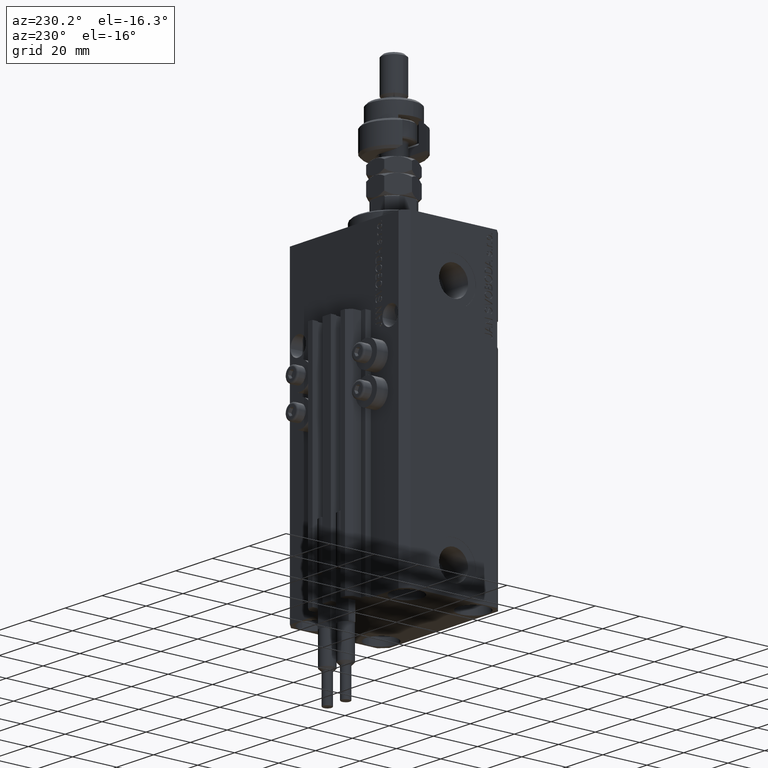
[diagram: clean part render]
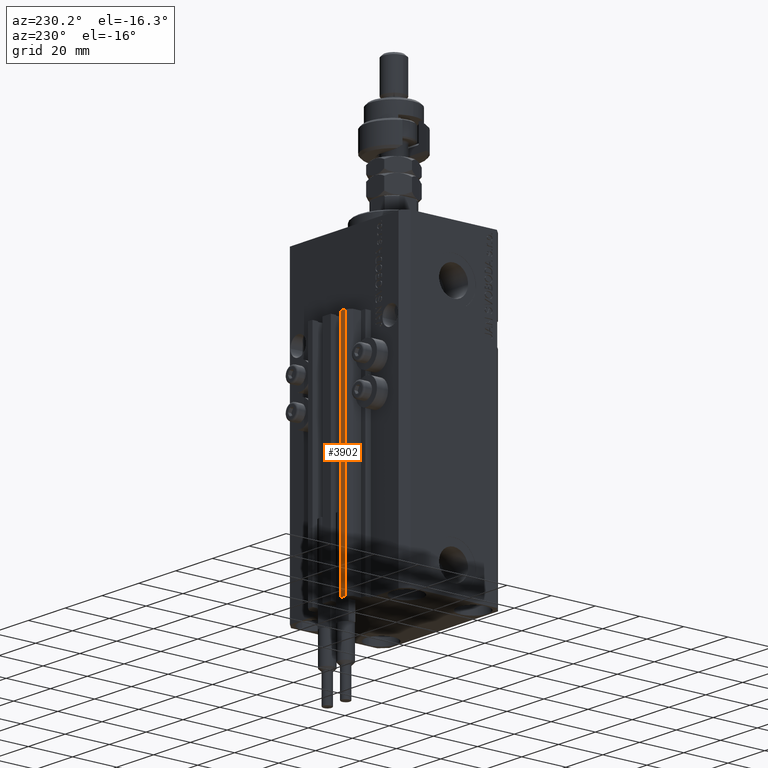
[diagram: same view with one face highlighted and labeled with its STEP entity id]
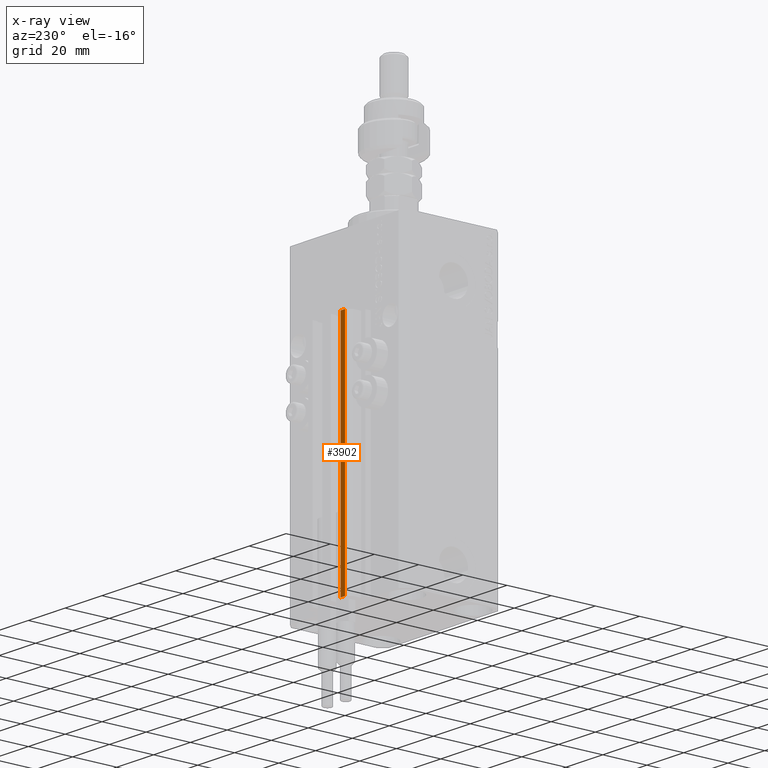
[diagram: x-ray of the same camera — body ghosted, the highlighted face saturated]
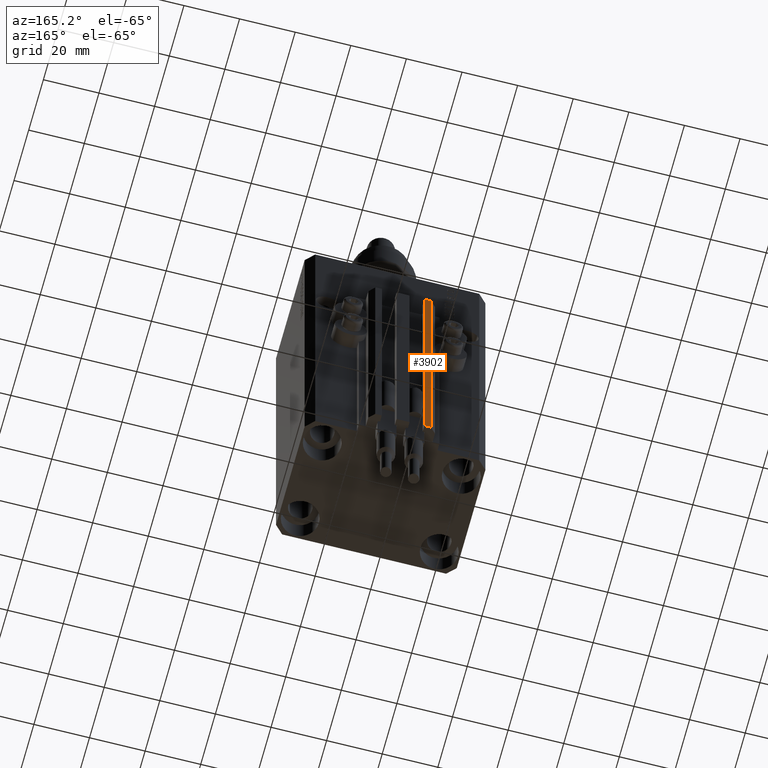
[diagram: same view with one face highlighted and labeled with its STEP entity id]
A machine part, auxiliary view. The second image highlights one B-rep face of the part: STEP entity #3902.
The next image is the same camera in x-ray: the body ghosted, the highlighted face saturated — about 0% of this face is hidden behind the body in this view.
A second angle (auxiliary view) of the same face is appended — the face is thin or edge-on in the first view.
In plain terms, the highlighted planar face has unit normal (0, 1, 0).
Its self-contained STEP definition (entity closure, byte-faithful):
#1287 = VECTOR ( 'NONE', #30490, 1000.000000000000000 ) ;
#3902 = ADVANCED_FACE ( 'NONE', ( #43196 ), #35518, .T. ) ;
#5697 = CARTESIAN_POINT ( 'NONE',  ( -10.00000000000000000, 30.49999999999948841, -33.00000000000000000 ) ) ;
#6078 = VERTEX_POINT ( 'NONE', #50639 ) ;
#6126 = LINE ( 'NONE', #48527, #43430 ) ;
#9014 = VERTEX_POINT ( 'NONE', #41053 ) ;
#12101 = DIRECTION ( 'NONE',  ( -1.000000000000000000, 1.476360405086645049E-15, 0.000000000000000000 ) ) ;
#12180 = CARTESIAN_POINT ( 'NONE',  ( -10.00000000000000000, 30.49999999999948841, -137.0000000000000000 ) ) ;
#14788 = LINE ( 'NONE', #42539, #1287 ) ;
#16701 = CARTESIAN_POINT ( 'NONE',  ( -7.650000000000000355, 30.49999999999948486, -33.00000000000000000 ) ) ;
#18454 = CARTESIAN_POINT ( 'NONE',  ( -7.650000000000000355, 30.49999999999948486, -137.0000000000000000 ) ) ;
#21082 = EDGE_LOOP ( 'NONE', ( #32010, #34123, #45308, #48952 ) ) ;
#22601 = VERTEX_POINT ( 'NONE', #5697 ) ;
#25901 = EDGE_CURVE ( 'NONE', #6078, #22601, #31226, .T. ) ;
#27873 = DIRECTION ( 'NONE',  ( 0.000000000000000000, 0.000000000000000000, 1.000000000000000000 ) ) ;
#28663 = AXIS2_PLACEMENT_3D ( 'NONE', #50648, #39360, #12101 ) ;
#30490 = DIRECTION ( 'NONE',  ( -1.000000000000000000, 1.476360405086644852E-15, 0.000000000000000000 ) ) ;
#30566 = LINE ( 'NONE', #18454, #46640 ) ;
#31226 = LINE ( 'NONE', #12180, #43975 ) ;
#32010 = ORIENTED_EDGE ( 'NONE', *, *, #36679, .F. ) ;
#32783 = EDGE_CURVE ( 'NONE', #9014, #38341, #6126, .T. ) ;
#34123 = ORIENTED_EDGE ( 'NONE', *, *, #32783, .F. ) ;
#35518 = PLANE ( 'NONE',  #28663 ) ;
#36679 = EDGE_CURVE ( 'NONE', #38341, #22601, #14788, .T. ) ;
#38267 = DIRECTION ( 'NONE',  ( -1.000000000000000000, 1.476360405086644852E-15, 0.000000000000000000 ) ) ;
#38341 = VERTEX_POINT ( 'NONE', #16701 ) ;
#39360 = DIRECTION ( 'NONE',  ( 1.476360405086645049E-15, 1.000000000000000000, -0.000000000000000000 ) ) ;
#41053 = CARTESIAN_POINT ( 'NONE',  ( -7.650000000000000355, 30.49999999999948486, -137.0000000000000000 ) ) ;
#42539 = CARTESIAN_POINT ( 'NONE',  ( -7.650000000000000355, 30.49999999999948486, -33.00000000000000000 ) ) ;
#43196 = FACE_OUTER_BOUND ( 'NONE', #21082, .T. ) ;
#43430 = VECTOR ( 'NONE', #45426, 1000.000000000000000 ) ;
#43975 = VECTOR ( 'NONE', #27873, 1000.000000000000000 ) ;
#45308 = ORIENTED_EDGE ( 'NONE', *, *, #47155, .T. ) ;
#45426 = DIRECTION ( 'NONE',  ( 0.000000000000000000, 0.000000000000000000, 1.000000000000000000 ) ) ;
#46640 = VECTOR ( 'NONE', #38267, 1000.000000000000000 ) ;
#47155 = EDGE_CURVE ( 'NONE', #9014, #6078, #30566, .T. ) ;
#48527 = CARTESIAN_POINT ( 'NONE',  ( -7.650000000000000355, 30.49999999999948486, -137.0000000000000000 ) ) ;
#48952 = ORIENTED_EDGE ( 'NONE', *, *, #25901, .T. ) ;
#50639 = CARTESIAN_POINT ( 'NONE',  ( -10.00000000000000000, 30.49999999999948841, -137.0000000000000000 ) ) ;
#50648 = CARTESIAN_POINT ( 'NONE',  ( -7.650000000000000355, 30.49999999999948486, -137.0000000000000000 ) ) ;